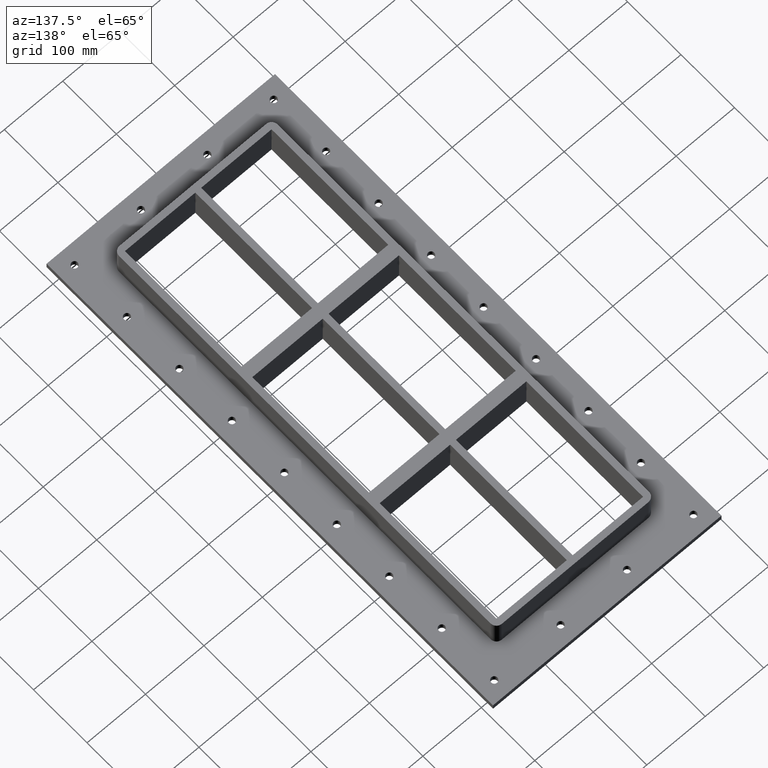
[diagram: clean part render]
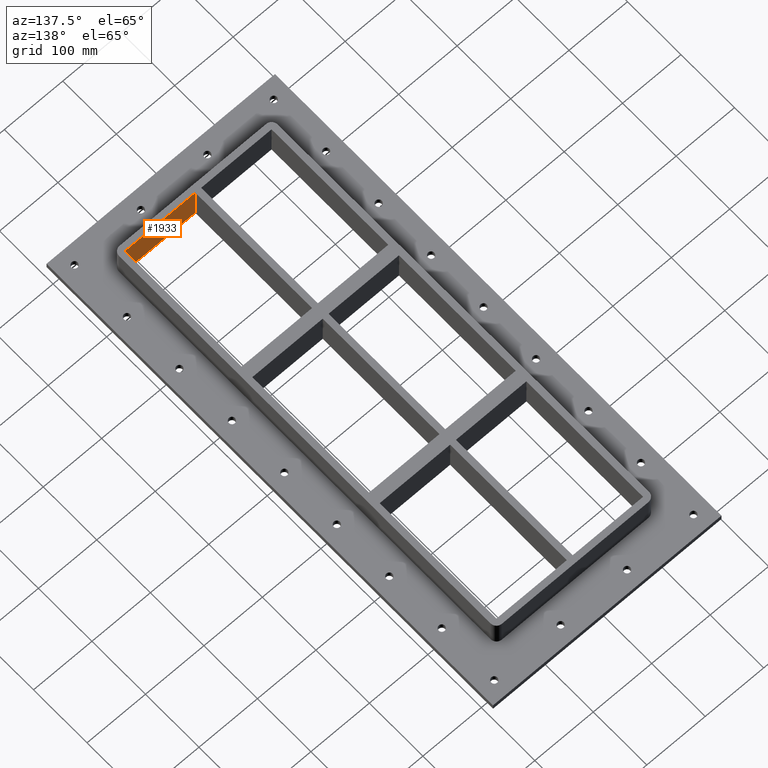
[diagram: same view with one face highlighted and labeled with its STEP entity id]
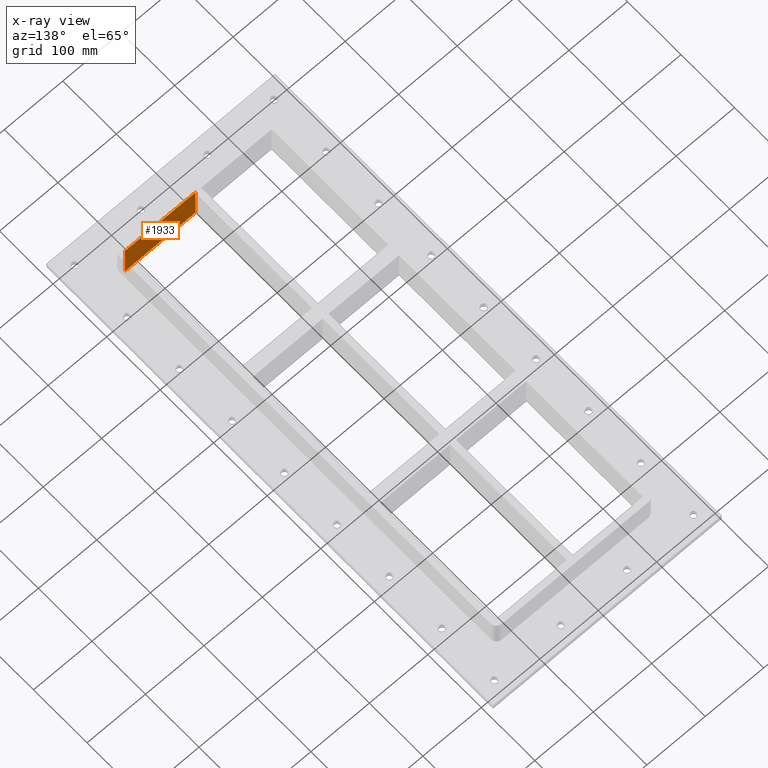
[diagram: x-ray of the same camera — body ghosted, the highlighted face saturated]
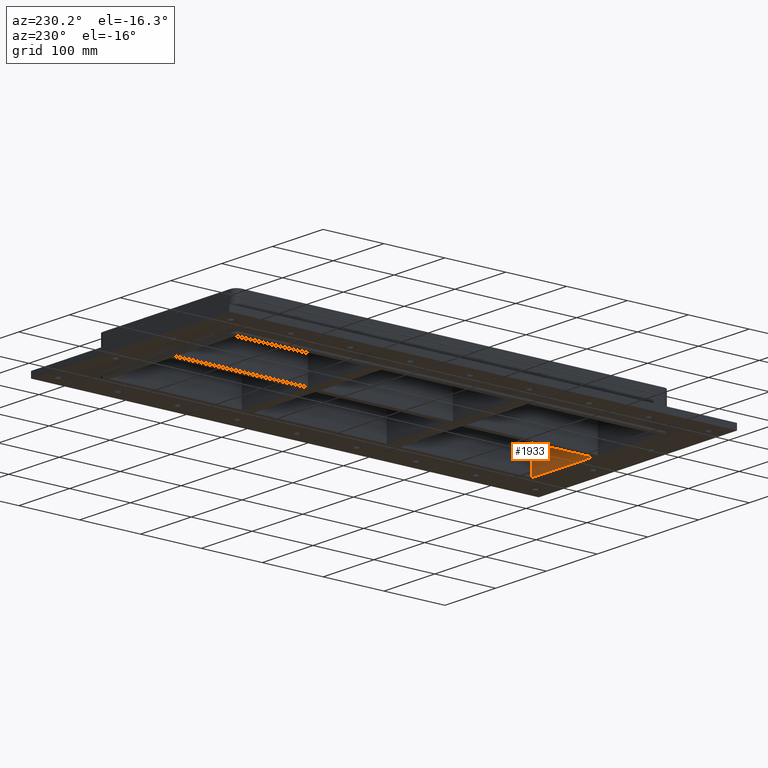
[diagram: same view with one face highlighted and labeled with its STEP entity id]
A machine part, auxiliary view. The second image highlights one B-rep face of the part: STEP entity #1933.
The next image is the same camera in x-ray: the body ghosted, the highlighted face saturated — about 0% of this face is hidden behind the body in this view.
A second angle (auxiliary view) of the same face is appended — the face is thin or edge-on in the first view.
In plain terms, the highlighted planar face has unit normal (0, -1, 0).
Its self-contained STEP definition (entity closure, byte-faithful):
#1444=CARTESIAN_POINT('',(5.000000000000124,-346.99999999999989,-30.0));
#1445=VERTEX_POINT('',#1444);
#1452=CARTESIAN_POINT('',(125.50000000000013,-346.99999999999989,-30.0));
#1453=VERTEX_POINT('',#1452);
#1454=CARTESIAN_POINT('',(5.000000000000128,-346.99999999999989,-30.0));
#1455=DIRECTION('',(1.0,0.0,0.0));
#1456=VECTOR('',#1455,120.5);
#1457=LINE('',#1454,#1456);
#1458=EDGE_CURVE('',#1445,#1453,#1457,.T.);
#1893=CARTESIAN_POINT('',(5.000000000000124,-346.99999999999989,30.0));
#1894=VERTEX_POINT('',#1893);
#1901=CARTESIAN_POINT('',(5.000000000000124,-346.99999999999989,30.0));
#1902=DIRECTION('',(0.0,0.0,-1.0));
#1903=VECTOR('',#1902,60.0);
#1904=LINE('',#1901,#1903);
#1905=EDGE_CURVE('',#1894,#1445,#1904,.T.);
#1910=CARTESIAN_POINT('',(125.50000000000013,-346.99999999999989,30.0));
#1911=DIRECTION('',(0.0,-1.0,0.0));
#1912=DIRECTION('',(-1.0,0.0,0.0));
#1913=AXIS2_PLACEMENT_3D('',#1910,#1911,#1912);
#1914=PLANE('',#1913);
#1915=ORIENTED_EDGE('',*,*,#1458,.F.);
#1916=ORIENTED_EDGE('',*,*,#1905,.F.);
#1917=CARTESIAN_POINT('',(125.50000000000013,-346.99999999999989,30.0));
#1918=VERTEX_POINT('',#1917);
#1919=CARTESIAN_POINT('',(125.50000000000013,-346.99999999999989,30.0));
#1920=DIRECTION('',(-1.0,0.0,0.0));
#1921=VECTOR('',#1920,120.5);
#1922=LINE('',#1919,#1921);
#1923=EDGE_CURVE('',#1918,#1894,#1922,.T.);
#1924=ORIENTED_EDGE('',*,*,#1923,.F.);
#1925=CARTESIAN_POINT('',(125.50000000000013,-346.99999999999989,30.0));
#1926=DIRECTION('',(0.0,0.0,-1.0));
#1927=VECTOR('',#1926,60.0);
#1928=LINE('',#1925,#1927);
#1929=EDGE_CURVE('',#1918,#1453,#1928,.T.);
#1930=ORIENTED_EDGE('',*,*,#1929,.T.);
#1931=EDGE_LOOP('',(#1915,#1916,#1924,#1930));
#1932=FACE_OUTER_BOUND('',#1931,.T.);
#1933=ADVANCED_FACE('',(#1932),#1914,.F.);